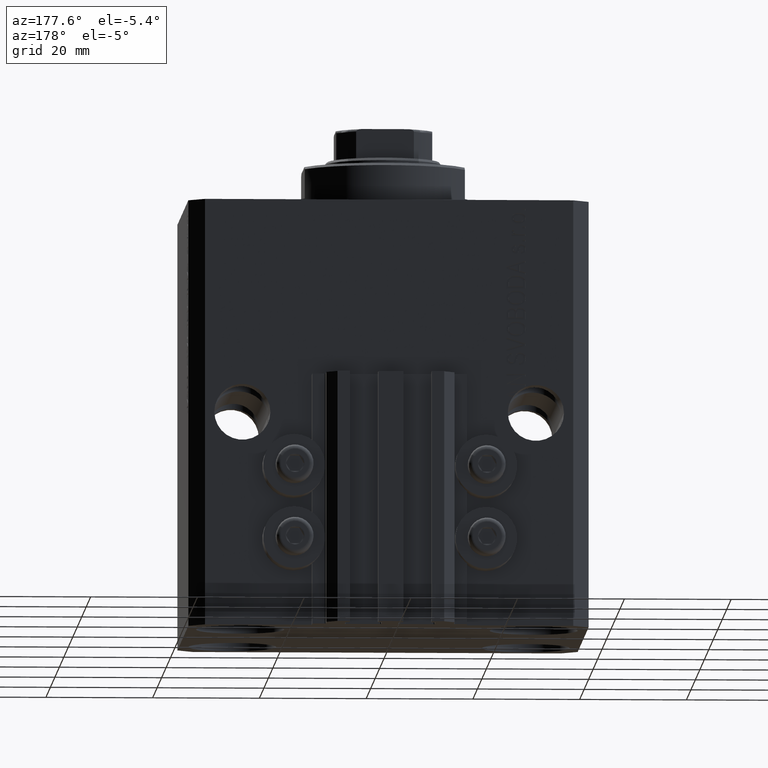
[diagram: clean part render]
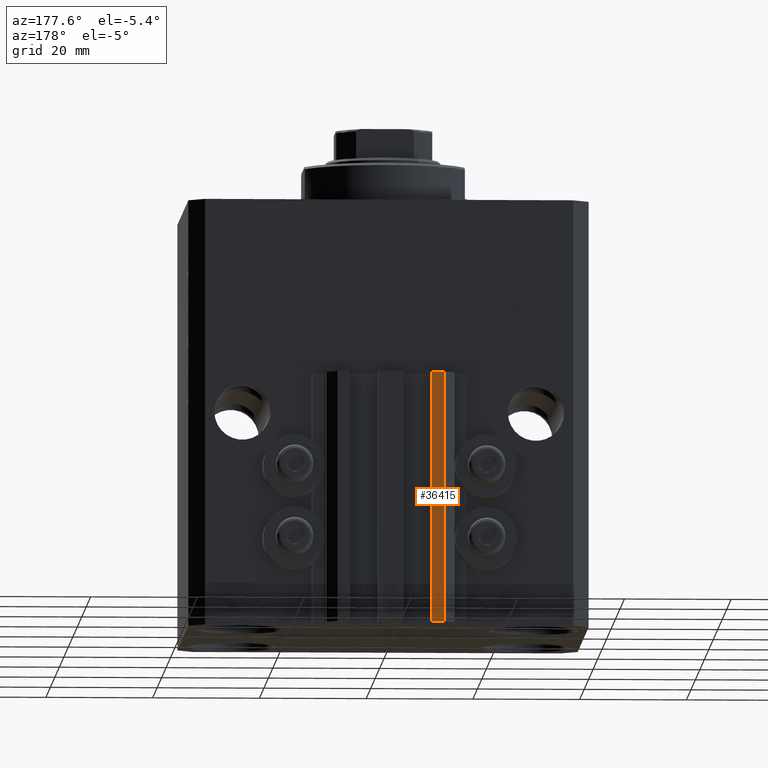
[diagram: same view with one face highlighted and labeled with its STEP entity id]
A machine part, auxiliary view. The second image highlights one B-rep face of the part: STEP entity #36415.
In plain terms, the highlighted planar face has unit normal (0, 1, 0).
Its self-contained STEP definition (entity closure, byte-faithful):
#2601 = LINE ( 'NONE', #35706, #28806 ) ;
#4275 = CARTESIAN_POINT ( 'NONE',  ( -7.650000000000000355, 35.50000000000000000, -80.00000000000000000 ) ) ;
#4588 = LINE ( 'NONE', #16648, #19149 ) ;
#5221 = EDGE_CURVE ( 'NONE', #43426, #12702, #2601, .T. ) ;
#5379 = CARTESIAN_POINT ( 'NONE',  ( -10.00000000000000000, 35.50000000000000000, -33.00000000000000000 ) ) ;
#5676 = ORIENTED_EDGE ( 'NONE', *, *, #5221, .T. ) ;
#7459 = EDGE_CURVE ( 'NONE', #12702, #25138, #37567, .T. ) ;
#8522 = FACE_OUTER_BOUND ( 'NONE', #41444, .T. ) ;
#8766 = PLANE ( 'NONE',  #31763 ) ;
#9314 = ORIENTED_EDGE ( 'NONE', *, *, #7459, .T. ) ;
#12702 = VERTEX_POINT ( 'NONE', #39082 ) ;
#13090 = EDGE_CURVE ( 'NONE', #43426, #37964, #35242, .T. ) ;
#15367 = CARTESIAN_POINT ( 'NONE',  ( -7.650000000000000355, 35.50000000000000000, -80.00000000000000000 ) ) ;
#16648 = CARTESIAN_POINT ( 'NONE',  ( -7.650000000000000355, 35.50000000000000000, -33.00000000000000000 ) ) ;
#17033 = DIRECTION ( 'NONE',  ( -1.000000000000000000, 0.000000000000000000, 0.000000000000000000 ) ) ;
#17254 = DIRECTION ( 'NONE',  ( 0.000000000000000000, 0.000000000000000000, 1.000000000000000000 ) ) ;
#18945 = DIRECTION ( 'NONE',  ( 0.000000000000000000, 0.000000000000000000, 1.000000000000000000 ) ) ;
#19149 = VECTOR ( 'NONE', #34643, 1000.000000000000000 ) ;
#19395 = ORIENTED_EDGE ( 'NONE', *, *, #13090, .F. ) ;
#19924 = EDGE_CURVE ( 'NONE', #37964, #25138, #4588, .T. ) ;
#20584 = CARTESIAN_POINT ( 'NONE',  ( -7.650000000000000355, 35.50000000000000000, -80.00000000000000000 ) ) ;
#25138 = VERTEX_POINT ( 'NONE', #5379 ) ;
#26907 = CARTESIAN_POINT ( 'NONE',  ( -10.00000000000000000, 35.50000000000000000, -80.00000000000000000 ) ) ;
#27284 = CARTESIAN_POINT ( 'NONE',  ( -7.650000000000000355, 35.50000000000000000, -33.00000000000000000 ) ) ;
#28806 = VECTOR ( 'NONE', #17033, 1000.000000000000000 ) ;
#29592 = DIRECTION ( 'NONE',  ( 0.000000000000000000, 1.000000000000000000, -0.000000000000000000 ) ) ;
#31763 = AXIS2_PLACEMENT_3D ( 'NONE', #4275, #29592, #18945 ) ;
#34643 = DIRECTION ( 'NONE',  ( -1.000000000000000000, 0.000000000000000000, 0.000000000000000000 ) ) ;
#34911 = VECTOR ( 'NONE', #17254, 1000.000000000000000 ) ;
#35242 = LINE ( 'NONE', #20584, #34911 ) ;
#35706 = CARTESIAN_POINT ( 'NONE',  ( -7.650000000000000355, 35.50000000000000000, -80.00000000000000000 ) ) ;
#36415 = ADVANCED_FACE ( 'NONE', ( #8522 ), #8766, .T. ) ;
#36771 = ORIENTED_EDGE ( 'NONE', *, *, #19924, .F. ) ;
#37567 = LINE ( 'NONE', #26907, #40326 ) ;
#37964 = VERTEX_POINT ( 'NONE', #27284 ) ;
#39082 = CARTESIAN_POINT ( 'NONE',  ( -10.00000000000000000, 35.50000000000000000, -80.00000000000000000 ) ) ;
#40326 = VECTOR ( 'NONE', #44435, 1000.000000000000000 ) ;
#41444 = EDGE_LOOP ( 'NONE', ( #36771, #19395, #5676, #9314 ) ) ;
#43426 = VERTEX_POINT ( 'NONE', #15367 ) ;
#44435 = DIRECTION ( 'NONE',  ( 0.000000000000000000, 0.000000000000000000, 1.000000000000000000 ) ) ;